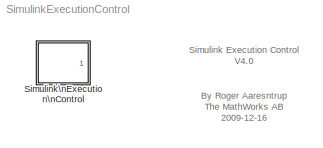
MODEL SimulinkExecutionControl
KIND library
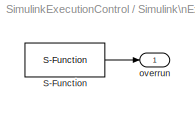
BLOCK [SubSystem] Simulink\nExecution\nControl
  FunctionWithSeparateData = off
  MaskCallbackString = ||rt_sim_callback|||
  MaskDescription = This block controls the execution of a Simulink model and allows you to run the simulation in real-time or a factor of real-time. Please note that the priorites selected will only be valud for the period of the simulation. After the simulation the priorites will be set to normal.\n\nWARNING! If you select REAL_TIME_PRIORITY _CLASS and/or THREAD_PRIORITY_TIME_CRITICAL your computer can stop respond...<+1524ch>
  MaskDisplay = image(imread('timer_icon.jpg'))
  MaskEnableString = on,on,on,on,on,on
  MaskHideContents = off
  MaskIconFrame = off
  MaskIconOpaque = on
  MaskIconRotate = none
  MaskIconUnits = autoscale
  MaskPortRotate = default
  MaskPromptString = Process Class Priority|Thread Priority|Real-Time Simulation|Real-Time Factor|Overrun Behaviour|Sample Time
  MaskStyleString = popup(IDLE_PRIORITY_CLASS|BELOW_NORMAL_PRIORITY_CLASS|NORMAL_PRIORITY_CLASS|ABOVE_NORMAL_PRIORITY_CLASS|HIGH_PRIORITY_CLASS|REALTIME_PRIORITY_CLASS),popup(THREAD_PRIORITY_IDLE|THREAD_PRIORITY_LOWEST|THREAD_PRIORITY_BELOW_NORMAL|THREAD_PRIORITY_NORMAL|THREAD_PRIORITY_ABOVE_NORMAL|THREAD_PRIORITY_HIGHEST|THREAD_PRIORITY_TIME_CRITICAL),checkbox,edit,popup(Continue execution|Error),edit
  MaskTabNameString = ,,,,,
  MaskToolTipString = on,on,on,on,on,on
  MaskTunableValueString = off,off,off,off,off,off
  MaskType = Simulink Execution Control V4.0
  MaskValueString = NORMAL_PRIORITY_CLASS|THREAD_PRIORITY_NORMAL|on|1|Continue execution|1
  MaskVarAliasString = ,,,,,
  MaskVariables = proc_pri=@1;thread_pri=@2;rt_sim=@3;factor=@4;ovrrun=@5;Ts=@6;
  MaskVisibilityString = on,on,on,on,on,on
  MinAlgLoopOccurrences = off
  Opaque = off
  Ports = [0, 1]
  PropExecContextOutsideSubsystem = off
  RTWSystemCode = Auto
  RequestExecContextInheritance = off
BLOCK [S-Function] Simulink\nExecution\nControl/S-Function
  EnableBusSupport = off
  FunctionName = sfun_exec_contr
  Parameters = 1/factor ovrrun proc_pri thread_pri Ts rt_sim
  Ports = [0, 1]
BLOCK [Outport] Simulink\nExecution\nControl/overrun
  IconDisplay = Port number
  OutDataType = sfix(16)
  OutScaling = 2^0
ANNOTATION (root): By Roger Aaresntrup\nThe MathWorks AB\n2009-12-16
ANNOTATION (root): Simulink Execution Control\nV4.0
LINE Simulink\nExecution\nControl/S-Function:1 -> Simulink\nExecution\nControl/overrun:1
